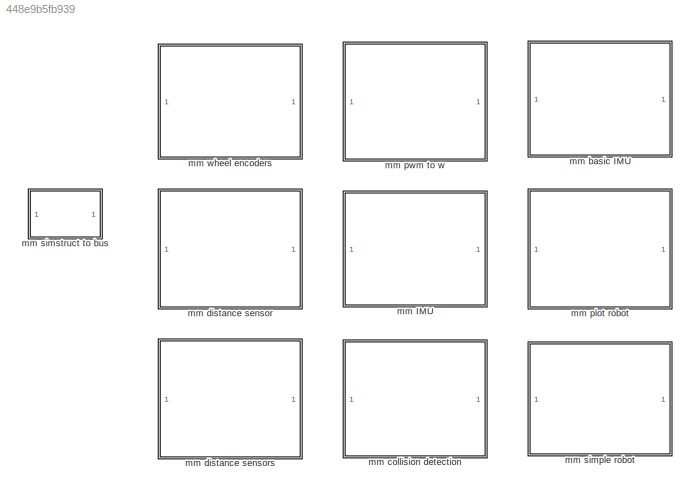
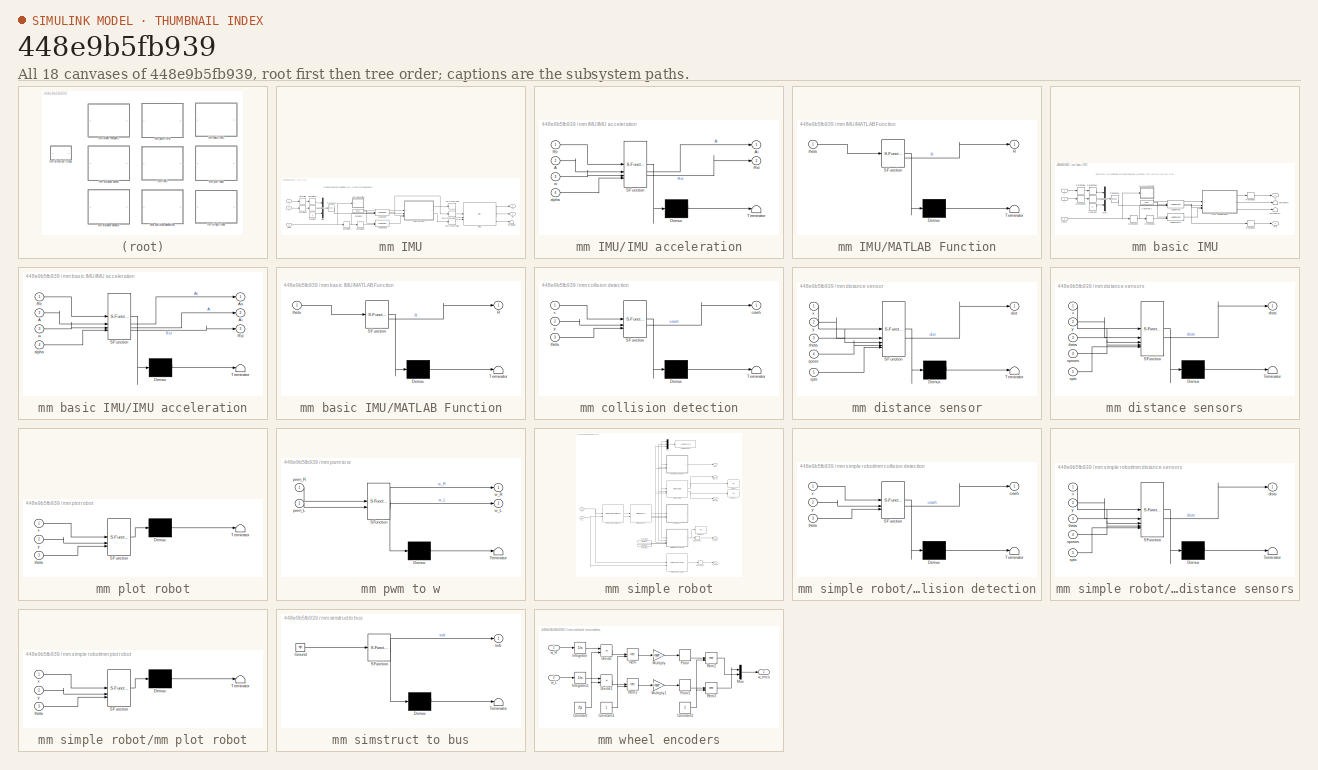
[diagram: thumbnail index - all 18 canvases of the model, root first then tree order]
MODEL slx_448e9b5fb939
KIND library
CONFIG AbsTol = auto
CONFIG EnableMultiTasking = off
CONFIG FixedStep = auto
CONFIG MaxStep = auto
CONFIG MinStep = auto
CONFIG RelTol = 1e-3
CONFIG SampleTimeConstraint = Unconstrained
CONFIG SolverName = VariableStepAuto
CONFIG StartTime = 0.0
CONFIG StopTime = 10.0
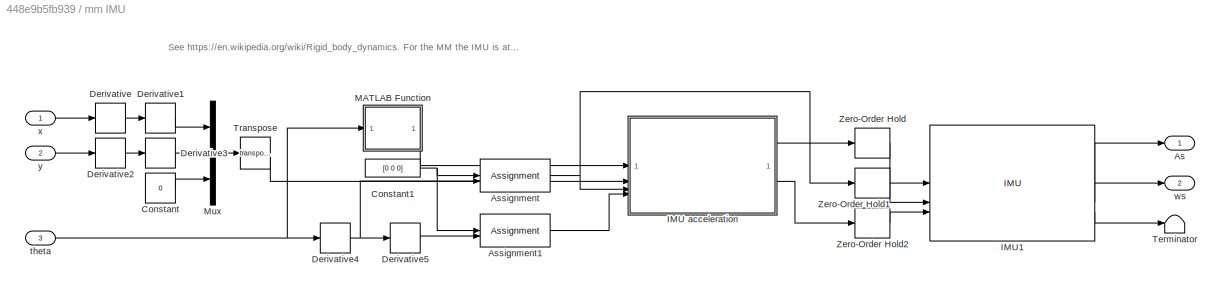
BLOCK [SubSystem] mm IMU
BLOCK [Outport] mm IMU/As
BLOCK [Assignment] mm IMU/Assignment
  DiagnosticForDimensions = Warning
  IndexOptions = Index vector (dialog)
  Indices = 3
  OutputSizes = 1
BLOCK [Assignment] mm IMU/Assignment1
  DiagnosticForDimensions = Warning
  IndexOptions = Index vector (dialog)
  Indices = 3
  OutputSizes = 1
BLOCK [Constant] mm IMU/Constant
  Value = 0
BLOCK [Constant] mm IMU/Constant1
  Value = [0 0 0]
  VectorParams1D = off
BLOCK [Derivative] mm IMU/Derivative
BLOCK [Derivative] mm IMU/Derivative1
BLOCK [Derivative] mm IMU/Derivative2
BLOCK [Derivative] mm IMU/Derivative3
BLOCK [Derivative] mm IMU/Derivative4
BLOCK [Derivative] mm IMU/Derivative5
BLOCK [SubSystem] mm IMU/IMU acceleration
  ErrorFcn = Stateflow.Translate.translate
  PermitHierarchicalResolution = ExplicitOnly
  SFBlockType = MATLAB Function
  TreatAsAtomicUnit = on
BLOCK [Demux] mm IMU/IMU acceleration/ Demux 
  Outputs = 1
BLOCK [S-Function] mm IMU/IMU acceleration/ SFunction 
  EnableBusSupport = off
  FunctionName = sf_sfun
  Parameters = simstruct
  PortCounts = [4 3]
  SFcnIsStateOwnerBlock = off
  SFunctionDeploymentMode = off
  Tag = Stateflow S-Function 4
BLOCK [Terminator] mm IMU/IMU acceleration/ Terminator 
BLOCK [Inport] mm IMU/IMU acceleration/A
  Port = 2
BLOCK [Outport] mm IMU/IMU acceleration/Ai
BLOCK [Inport] mm IMU/IMU acceleration/Rlr
BLOCK [Outport] mm IMU/IMU acceleration/Rsl
  Port = 2
BLOCK [Inport] mm IMU/IMU acceleration/alpha
  Port = 4
BLOCK [Inport] mm IMU/IMU acceleration/w
  Port = 3
BLOCK [Reference] mm IMU/IMU1  REF=mspsensorlib/IMU
  SourceBlock = mspsensorlib/IMU
  SourceType = fusion.simulink.imuSensor
BLOCK [SubSystem] mm IMU/MATLAB Function
  ErrorFcn = Stateflow.Translate.translate
  PermitHierarchicalResolution = ExplicitOnly
  SFBlockType = MATLAB Function
  TreatAsAtomicUnit = on
BLOCK [Demux] mm IMU/MATLAB Function/ Demux 
  Outputs = 1
BLOCK [S-Function] mm IMU/MATLAB Function/ SFunction 
  EnableBusSupport = off
  FunctionName = sf_sfun
  PortCounts = [1 2]
  SFcnIsStateOwnerBlock = off
  SFunctionDeploymentMode = off
  Tag = Stateflow S-Function 5
BLOCK [Terminator] mm IMU/MATLAB Function/ Terminator 
BLOCK [Outport] mm IMU/MATLAB Function/R
BLOCK [Inport] mm IMU/MATLAB Function/theta
BLOCK [Mux] mm IMU/Mux
  DisplayOption = bar
  Inputs = 3
BLOCK [Terminator] mm IMU/Terminator
BLOCK [Math] mm IMU/Transpose
  Operator = transpose
BLOCK [ZeroOrderHold] mm IMU/Zero-Order Hold
  SampleTime = 0.02
BLOCK [ZeroOrderHold] mm IMU/Zero-Order Hold1
  SampleTime = 0.02
BLOCK [ZeroOrderHold] mm IMU/Zero-Order Hold2
  SampleTime = 0.02
BLOCK [Inport] mm IMU/theta
  Port = 3
BLOCK [Outport] mm IMU/ws
  Port = 2
BLOCK [Inport] mm IMU/x
BLOCK [Inport] mm IMU/y
  Port = 2
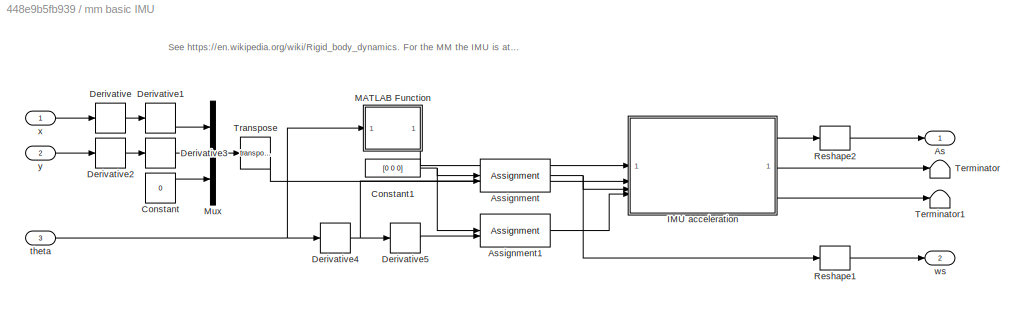
BLOCK [SubSystem] mm basic IMU
BLOCK [Outport] mm basic IMU/As
BLOCK [Assignment] mm basic IMU/Assignment
  DiagnosticForDimensions = Warning
  IndexOptions = Index vector (dialog)
  Indices = 3
  OutputSizes = 1
BLOCK [Assignment] mm basic IMU/Assignment1
  DiagnosticForDimensions = Warning
  IndexOptions = Index vector (dialog)
  Indices = 3
  OutputSizes = 1
BLOCK [Constant] mm basic IMU/Constant
  Value = 0
BLOCK [Constant] mm basic IMU/Constant1
  Value = [0 0 0]
  VectorParams1D = off
BLOCK [Derivative] mm basic IMU/Derivative
BLOCK [Derivative] mm basic IMU/Derivative1
BLOCK [Derivative] mm basic IMU/Derivative2
BLOCK [Derivative] mm basic IMU/Derivative3
BLOCK [Derivative] mm basic IMU/Derivative4
BLOCK [Derivative] mm basic IMU/Derivative5
BLOCK [SubSystem] mm basic IMU/IMU acceleration
  ErrorFcn = Stateflow.Translate.translate
  PermitHierarchicalResolution = ExplicitOnly
  SFBlockType = MATLAB Function
  TreatAsAtomicUnit = on
BLOCK [Demux] mm basic IMU/IMU acceleration/ Demux 
  Outputs = 1
BLOCK [S-Function] mm basic IMU/IMU acceleration/ SFunction 
  EnableBusSupport = off
  FunctionName = sf_sfun
  Parameters = simstruct
  PortCounts = [4 4]
  SFcnIsStateOwnerBlock = off
  SFunctionDeploymentMode = off
  Tag = Stateflow S-Function 9
BLOCK [Terminator] mm basic IMU/IMU acceleration/ Terminator 
BLOCK [Inport] mm basic IMU/IMU acceleration/A
  Port = 2
BLOCK [Outport] mm basic IMU/IMU acceleration/Ai
  Port = 2
BLOCK [Outport] mm basic IMU/IMU acceleration/As
BLOCK [Inport] mm basic IMU/IMU acceleration/Rlr
BLOCK [Outport] mm basic IMU/IMU acceleration/Rsl
  Port = 3
BLOCK [Inport] mm basic IMU/IMU acceleration/alpha
  Port = 4
BLOCK [Inport] mm basic IMU/IMU acceleration/w
  Port = 3
BLOCK [SubSystem] mm basic IMU/MATLAB Function
  ErrorFcn = Stateflow.Translate.translate
  PermitHierarchicalResolution = ExplicitOnly
  SFBlockType = MATLAB Function
  TreatAsAtomicUnit = on
BLOCK [Demux] mm basic IMU/MATLAB Function/ Demux 
  Outputs = 1
BLOCK [S-Function] mm basic IMU/MATLAB Function/ SFunction 
  EnableBusSupport = off
  FunctionName = sf_sfun
  PortCounts = [1 2]
  SFcnIsStateOwnerBlock = off
  SFunctionDeploymentMode = off
  Tag = Stateflow S-Function 13
BLOCK [Terminator] mm basic IMU/MATLAB Function/ Terminator 
BLOCK [Outport] mm basic IMU/MATLAB Function/R
BLOCK [Inport] mm basic IMU/MATLAB Function/theta
BLOCK [Mux] mm basic IMU/Mux
  DisplayOption = bar
  Inputs = 3
BLOCK [Reshape] mm basic IMU/Reshape1
BLOCK [Reshape] mm basic IMU/Reshape2
BLOCK [Terminator] mm basic IMU/Terminator
BLOCK [Terminator] mm basic IMU/Terminator1
BLOCK [Math] mm basic IMU/Transpose
  Operator = transpose
BLOCK [Inport] mm basic IMU/theta
  Port = 3
BLOCK [Outport] mm basic IMU/ws
  Port = 2
BLOCK [Inport] mm basic IMU/x
BLOCK [Inport] mm basic IMU/y
  Port = 2
BLOCK [SubSystem] mm collision detection
  ErrorFcn = Stateflow.Translate.translate
  InitFcn = struct2bus(simstruct,'ssbus');
  PermitHierarchicalResolution = ExplicitOnly
  SFBlockType = MATLAB Function
  TreatAsAtomicUnit = on
BLOCK [Demux] mm collision detection/ Demux 
  Outputs = 1
BLOCK [S-Function] mm collision detection/ SFunction 
  EnableBusSupport = off
  FunctionName = sf_sfun
  Parameters = simstruct
  PortCounts = [3 2]
  SFcnIsStateOwnerBlock = off
  SFunctionDeploymentMode = off
  Tag = Stateflow S-Function 3
BLOCK [Terminator] mm collision detection/ Terminator 
BLOCK [Outport] mm collision detection/crash
BLOCK [Inport] mm collision detection/theta
  Port = 3
BLOCK [Inport] mm collision detection/x
BLOCK [Inport] mm collision detection/y
  Port = 2
BLOCK [SubSystem] mm distance sensor
  ErrorFcn = Stateflow.Translate.translate
  InitFcn = struct2bus(simstruct,'ssbus');
  PermitHierarchicalResolution = ExplicitOnly
  SFBlockType = MATLAB Function
  TreatAsAtomicUnit = on
BLOCK [Demux] mm distance sensor/ Demux 
  Outputs = 1
BLOCK [S-Function] mm distance sensor/ SFunction 
  EnableBusSupport = off
  FunctionName = sf_sfun
  Parameters = debug,simstruct
  PortCounts = [5 2]
  SFcnIsStateOwnerBlock = off
  SFunctionDeploymentMode = off
  Tag = Stateflow S-Function 2
BLOCK [Terminator] mm distance sensor/ Terminator 
BLOCK [Outport] mm distance sensor/dist
BLOCK [Inport] mm distance sensor/spose
  Port = 4
BLOCK [Inport] mm distance sensor/spts
  Port = 5
BLOCK [Inport] mm distance sensor/theta
  Port = 3
BLOCK [Inport] mm distance sensor/x
BLOCK [Inport] mm distance sensor/y
  Port = 2
BLOCK [SubSystem] mm distance sensors
  ErrorFcn = Stateflow.Translate.translate
  InitFcn = struct2bus(simstruct,'ssbus');
  PermitHierarchicalResolution = ExplicitOnly
  SFBlockType = MATLAB Function
  TreatAsAtomicUnit = on
BLOCK [Demux] mm distance sensors/ Demux 
  Outputs = 1
BLOCK [S-Function] mm distance sensors/ SFunction 
  EnableBusSupport = off
  FunctionName = sf_sfun
  Parameters = debug,simstruct
  PortCounts = [5 2]
  SFcnIsStateOwnerBlock = off
  SFunctionDeploymentMode = off
  Tag = Stateflow S-Function 10
BLOCK [Terminator] mm distance sensors/ Terminator 
BLOCK [Outport] mm distance sensors/dists
BLOCK [Inport] mm distance sensors/sposes
  Port = 4
BLOCK [Inport] mm distance sensors/spts
  Port = 5
BLOCK [Inport] mm distance sensors/theta
  Port = 3
BLOCK [Inport] mm distance sensors/x
BLOCK [Inport] mm distance sensors/y
  Port = 2
BLOCK [SubSystem] mm plot robot
  ErrorFcn = Stateflow.Translate.translate
  InitFcn = simstruct_var = get_param(gcb,'simstruct'); \nexistsinbase = evalin('base', ['exist(''' simstruct_var ''',''var'')']); \n\nss = [];\nif existsinbase \n  %disp(['initFcn: loading simulation structure ' simstruct_var]); \n  ss = evalin('base',simstruct_var); \nend\nstruct2bus(ss,'ssbus');  % generate bus definition
  PermitHierarchicalResolution = ExplicitOnly
  SFBlockType = MATLAB Function
  TreatAsAtomicUnit = on
BLOCK [Demux] mm plot robot/ Demux 
  Outputs = 1
BLOCK [S-Function] mm plot robot/ SFunction 
  EnableBusSupport = off
  FunctionName = sf_sfun
  Parameters = simstruct
  PortCounts = [3 1]
  SFcnIsStateOwnerBlock = off
  SFunctionDeploymentMode = off
  Tag = Stateflow S-Function 1
BLOCK [Terminator] mm plot robot/ Terminator 
BLOCK [Inport] mm plot robot/theta
  Port = 3
BLOCK [Inport] mm plot robot/x
BLOCK [Inport] mm plot robot/y
  Port = 2
BLOCK [SubSystem] mm pwm to w
  ErrorFcn = Stateflow.Translate.translate
  PermitHierarchicalResolution = ExplicitOnly
  SFBlockType = MATLAB Function
  TreatAsAtomicUnit = on
BLOCK [Demux] mm pwm to w/ Demux 
  Outputs = 1
BLOCK [S-Function] mm pwm to w/ SFunction 
  EnableBusSupport = off
  FunctionName = sf_sfun
  Parameters = deadb,maxw,motd
  PortCounts = [2 3]
  SFcnIsStateOwnerBlock = off
  SFunctionDeploymentMode = off
  Tag = Stateflow S-Function 8
BLOCK [Terminator] mm pwm to w/ Terminator 
BLOCK [Inport] mm pwm to w/pwm_L
  Port = 2
BLOCK [Inport] mm pwm to w/pwm_R
BLOCK [Outport] mm pwm to w/w_L
  Port = 2
BLOCK [Outport] mm pwm to w/w_R
BLOCK [SubSystem] mm simple robot
BLOCK [Constant] mm simple robot/Constant
  Value = simstruct.tofspts
BLOCK [Constant] mm simple robot/Constant1
  Value = simstruct.tofposes
BLOCK [Display] mm simple robot/Display
  Decimation = 1
BLOCK [Display] mm simple robot/Display1
  Decimation = 1
BLOCK [Display] mm simple robot/Display2
  Decimation = 1
BLOCK [Mux] mm simple robot/Mux
  DisplayOption = bar
  Inputs = 3
BLOCK [Reshape] mm simple robot/Reshape2
BLOCK [Reshape] mm simple robot/Reshape3
BLOCK [ToWorkspace] mm simple robot/To Workspace
  FixptAsFi = on
  MaxDataPoints = inf
  SampleTime = -1
  SaveFormat = Timeseries
  VariableName = trajectory
BLOCK [Outport] mm simple robot/crash
BLOCK [Outport] mm simple robot/imu_As
  Port = 2
BLOCK [Outport] mm simple robot/imu_ws
  Port = 3
BLOCK [Reference] mm simple robot/mm basic IMU  REF=$bdroot/mm basic IMU
  SourceBlock = $bdroot/mm basic IMU
  SourceType = SubSystem
BLOCK [SubSystem] mm simple robot/mm collision detection
  ErrorFcn = Stateflow.Translate.translate
  InitFcn = struct2bus(simstruct,'ssbus');
  PermitHierarchicalResolution = ExplicitOnly
  SFBlockType = MATLAB Function
  TreatAsAtomicUnit = on
BLOCK [Demux] mm simple robot/mm collision detection/ Demux 
  Outputs = 1
BLOCK [S-Function] mm simple robot/mm collision detection/ SFunction 
  EnableBusSupport = off
  FunctionName = sf_sfun
  Parameters = simstruct
  PortCounts = [3 2]
  SFcnIsStateOwnerBlock = off
  SFunctionDeploymentMode = off
  Tag = Stateflow S-Function 7
BLOCK [Terminator] mm simple robot/mm collision detection/ Terminator 
BLOCK [Outport] mm simple robot/mm collision detection/crash
BLOCK [Inport] mm simple robot/mm collision detection/theta
  Port = 3
BLOCK [Inport] mm simple robot/mm collision detection/x
BLOCK [Inport] mm simple robot/mm collision detection/y
  Port = 2
BLOCK [SubSystem] mm simple robot/mm distance sensors
  ErrorFcn = Stateflow.Translate.translate
  InitFcn = struct2bus(simstruct,'ssbus');
  PermitHierarchicalResolution = ExplicitOnly
  SFBlockType = MATLAB Function
  TreatAsAtomicUnit = on
BLOCK [Demux] mm simple robot/mm distance sensors/ Demux 
  Outputs = 1
BLOCK [S-Function] mm simple robot/mm distance sensors/ SFunction 
  EnableBusSupport = off
  FunctionName = sf_sfun
  Parameters = debug,simstruct
  PortCounts = [5 2]
  SFcnIsStateOwnerBlock = off
  SFunctionDeploymentMode = off
  Tag = Stateflow S-Function 11
BLOCK [Terminator] mm simple robot/mm distance sensors/ Terminator 
BLOCK [Outport] mm simple robot/mm distance sensors/dists
BLOCK [Inport] mm simple robot/mm distance sensors/sposes
  Port = 4
BLOCK [Inport] mm simple robot/mm distance sensors/spts
  Port = 5
BLOCK [Inport] mm simple robot/mm distance sensors/theta
  Port = 3
BLOCK [Inport] mm simple robot/mm distance sensors/x
BLOCK [Inport] mm simple robot/mm distance sensors/y
  Port = 2
BLOCK [SubSystem] mm simple robot/mm plot robot
  ErrorFcn = Stateflow.Translate.translate
  InitFcn = simstruct_var = get_param(gcb,'simstruct'); \nexistsinbase = evalin('base', ['exist(''' simstruct_var ''',''var'')']); \n\nss = [];\nif existsinbase \n  %disp(['initFcn: loading simulation structure ' simstruct_var]); \n  ss = evalin('base',simstruct_var); \nend\nstruct2bus(ss,'ssbus');  % generate bus definition
  PermitHierarchicalResolution = ExplicitOnly
  SFBlockType = MATLAB Function
  TreatAsAtomicUnit = on
BLOCK [Demux] mm simple robot/mm plot robot/ Demux 
  Outputs = 1
BLOCK [S-Function] mm simple robot/mm plot robot/ SFunction 
  EnableBusSupport = off
  FunctionName = sf_sfun
  Parameters = simstruct
  PortCounts = [3 1]
  SFcnIsStateOwnerBlock = off
  SFunctionDeploymentMode = off
  Tag = Stateflow S-Function 12
BLOCK [Terminator] mm simple robot/mm plot robot/ Terminator 
BLOCK [Inport] mm simple robot/mm plot robot/theta
  Port = 3
BLOCK [Inport] mm simple robot/mm plot robot/x
BLOCK [Inport] mm simple robot/mm plot robot/y
  Port = 2
BLOCK [Reference] mm simple robot/mm robot pose  REF=dhaouadi2013_lib/mm robot pose  (lib defined in slx_0665a0507d13)
  SourceBlock = dhaouadi2013_lib/mm robot pose
BLOCK [Reference] mm simple robot/mm wheel encoders  REF=$bdroot/mm wheel encoders
  SourceBlock = $bdroot/mm wheel encoders
BLOCK [Reference] mm simple robot/mm wheel kinematics inv  REF=dhaouadi2013_lib/mm wheel kinematics inv  (lib defined in slx_0665a0507d13)
  SourceBlock = dhaouadi2013_lib/mm wheel kinematics inv
BLOCK [Outport] mm simple robot/tof_dists
  Port = 4
BLOCK [Inport] mm simple robot/w_L
  Port = 2
BLOCK [Inport] mm simple robot/w_R
BLOCK [Outport] mm simple robot/w_encs
  Port = 5
BLOCK [SubSystem] mm simstruct to bus
  ErrorFcn = Stateflow.Translate.translate
  InitFcn = struct2bus(simstruct,'ssbus')
  PermitHierarchicalResolution = ExplicitOnly
  SFBlockType = MATLAB Function
  TreatAsAtomicUnit = on
BLOCK [Demux] mm simstruct to bus/ Demux 
  Outputs = 1
BLOCK [Ground] mm simstruct to bus/ Ground 
BLOCK [S-Function] mm simstruct to bus/ SFunction 
  EnableBusSupport = off
  FunctionName = sf_sfun
  PortCounts = [1 2]
  SFcnIsStateOwnerBlock = off
  SFunctionDeploymentMode = off
  Tag = Stateflow S-Function 6
BLOCK [Terminator] mm simstruct to bus/ Terminator 
BLOCK [Outport] mm simstruct to bus/ssb
BLOCK [SubSystem] mm wheel encoders
BLOCK [Constant] mm wheel encoders/Constant
  Value = 2*pi
BLOCK [Constant] mm wheel encoders/Constant1
BLOCK [Constant] mm wheel encoders/Constant2
  Value = 2
BLOCK [Product] mm wheel encoders/Divide
  Inputs = */
BLOCK [Product] mm wheel encoders/Divide1
  Inputs = */
BLOCK [Rounding] mm wheel encoders/Floor
BLOCK [Rounding] mm wheel encoders/Floor1
BLOCK [Integrator] mm wheel encoders/Integrator
BLOCK [Integrator] mm wheel encoders/Integrator1
BLOCK [Gain] mm wheel encoders/Multiply
  Gain = ticsperrev*2
BLOCK [Gain] mm wheel encoders/Multiply1
  Gain = ticsperrev*2
BLOCK [Mux] mm wheel encoders/Mux
  DisplayOption = bar
  Inputs = 2
BLOCK [Math] mm wheel encoders/Rem
  Operator = rem
BLOCK [Math] mm wheel encoders/Rem1
  Operator = rem
BLOCK [Math] mm wheel encoders/Rem2
  Operator = rem
BLOCK [Math] mm wheel encoders/Rem3
  Operator = rem
BLOCK [Inport] mm wheel encoders/w_L
  Port = 2
BLOCK [Inport] mm wheel encoders/w_R
BLOCK [Outport] mm wheel encoders/w_encs
ANNOTATION mm IMU: See https://en.wikipedia.org/wiki/Rigid_body_dynamics. For the MM the IMU is at the center of rotation of the mouse, so all this correction for Coriolis etc. isn't really required.
ANNOTATION mm basic IMU: See https://en.wikipedia.org/wiki/Rigid_body_dynamics. For the MM the IMU is at the center of rotation of the mouse, so all this correction for Coriolis etc. isn't really required.
LINE mm IMU/Assignment1:1 -> mm IMU/IMU acceleration:4
NET mm IMU/Assignment:1 -> mm IMU/IMU acceleration:3, mm IMU/Zero-Order Hold1:1
NET mm IMU/Constant1:1 -> mm IMU/Assignment1:1, mm IMU/Assignment:1
LINE mm IMU/Constant:1 -> mm IMU/Mux:3
LINE mm IMU/Derivative1:1 -> mm IMU/Mux:1
LINE mm IMU/Derivative2:1 -> mm IMU/Derivative3:1
LINE mm IMU/Derivative3:1 -> mm IMU/Mux:2
NET mm IMU/Derivative4:1 -> mm IMU/Assignment:2, mm IMU/Derivative5:1
LINE mm IMU/Derivative5:1 -> mm IMU/Assignment1:2
LINE mm IMU/Derivative:1 -> mm IMU/Derivative1:1
LINE mm IMU/IMU acceleration:1 -> mm IMU/Zero-Order Hold:1
LINE mm IMU/IMU acceleration:2 -> mm IMU/Zero-Order Hold2:1
LINE mm IMU/IMU1:1 -> mm IMU/As:1
LINE mm IMU/IMU1:2 -> mm IMU/ws:1
LINE mm IMU/IMU1:3 -> mm IMU/Terminator:1
LINE mm IMU/MATLAB Function:1 -> mm IMU/IMU acceleration:1
LINE mm IMU/Mux:1 -> mm IMU/Transpose:1
LINE mm IMU/Transpose:1 -> mm IMU/IMU acceleration:2
LINE mm IMU/Zero-Order Hold1:1 -> mm IMU/IMU1:2
LINE mm IMU/Zero-Order Hold2:1 -> mm IMU/IMU1:3
LINE mm IMU/Zero-Order Hold:1 -> mm IMU/IMU1:1
NET mm IMU/theta:1 -> mm IMU/Derivative4:1, mm IMU/MATLAB Function:1
LINE mm IMU/x:1 -> mm IMU/Derivative:1
LINE mm IMU/y:1 -> mm IMU/Derivative2:1
LINE mm basic IMU/Assignment1:1 -> mm basic IMU/IMU acceleration:4
NET mm basic IMU/Assignment:1 -> mm basic IMU/IMU acceleration:3, mm basic IMU/Reshape1:1
NET mm basic IMU/Constant1:1 -> mm basic IMU/Assignment1:1, mm basic IMU/Assignment:1
LINE mm basic IMU/Constant:1 -> mm basic IMU/Mux:3
LINE mm basic IMU/Derivative1:1 -> mm basic IMU/Mux:1
LINE mm basic IMU/Derivative2:1 -> mm basic IMU/Derivative3:1
LINE mm basic IMU/Derivative3:1 -> mm basic IMU/Mux:2
NET mm basic IMU/Derivative4:1 -> mm basic IMU/Assignment:2, mm basic IMU/Derivative5:1
LINE mm basic IMU/Derivative5:1 -> mm basic IMU/Assignment1:2
LINE mm basic IMU/Derivative:1 -> mm basic IMU/Derivative1:1
LINE mm basic IMU/IMU acceleration:1 -> mm basic IMU/Reshape2:1
LINE mm basic IMU/IMU acceleration:2 -> mm basic IMU/Terminator:1
LINE mm basic IMU/IMU acceleration:3 -> mm basic IMU/Terminator1:1
LINE mm basic IMU/MATLAB Function:1 -> mm basic IMU/IMU acceleration:1
LINE mm basic IMU/Mux:1 -> mm basic IMU/Transpose:1
LINE mm basic IMU/Reshape1:1 -> mm basic IMU/ws:1
LINE mm basic IMU/Reshape2:1 -> mm basic IMU/As:1
LINE mm basic IMU/Transpose:1 -> mm basic IMU/IMU acceleration:2
NET mm basic IMU/theta:1 -> mm basic IMU/Derivative4:1, mm basic IMU/MATLAB Function:1
LINE mm basic IMU/x:1 -> mm basic IMU/Derivative:1
LINE mm basic IMU/y:1 -> mm basic IMU/Derivative2:1
LINE mm simple robot/Constant1:1 -> mm simple robot/mm distance sensors:4
LINE mm simple robot/Constant:1 -> mm simple robot/mm distance sensors:5
LINE mm simple robot/Mux:1 -> mm simple robot/To Workspace:1
LINE mm simple robot/Reshape2:1 -> mm simple robot/tof_dists:1
LINE mm simple robot/Reshape3:1 -> mm simple robot/w_encs:1
NET mm simple robot/mm basic IMU:1 -> mm simple robot/Display:1, mm simple robot/imu_As:1
NET mm simple robot/mm basic IMU:2 -> mm simple robot/Display1:1, mm simple robot/imu_ws:1
LINE mm simple robot/mm collision detection:1 -> mm simple robot/crash:1
NET mm simple robot/mm distance sensors:1 -> mm simple robot/Display2:1, mm simple robot/Reshape2:1
NET mm simple robot/mm robot pose:1 -> mm simple robot/Mux:1, mm simple robot/mm basic IMU:1, mm simple robot/mm collision detection:1, mm simple robot/mm distance sensors:1, mm simple robot/mm plot robot:1
NET mm simple robot/mm robot pose:2 -> mm simple robot/Mux:2, mm simple robot/mm basic IMU:2, mm simple robot/mm collision detection:2, mm simple robot/mm distance sensors:2, mm simple robot/mm plot robot:2
NET mm simple robot/mm robot pose:3 -> mm simple robot/Mux:3, mm simple robot/mm basic IMU:3, mm simple robot/mm collision detection:3, mm simple robot/mm distance sensors:3, mm simple robot/mm plot robot:3
LINE mm simple robot/mm wheel encoders:1 -> mm simple robot/Reshape3:1
LINE mm simple robot/mm wheel kinematics inv:1 -> mm simple robot/mm robot pose:1
LINE mm simple robot/mm wheel kinematics inv:2 -> mm simple robot/mm robot pose:2
NET mm simple robot/w_L:1 -> mm simple robot/mm wheel encoders:2, mm simple robot/mm wheel kinematics inv:2
NET mm simple robot/w_R:1 -> mm simple robot/mm wheel encoders:1, mm simple robot/mm wheel kinematics inv:1
NET mm wheel encoders/Constant1:1 -> mm wheel encoders/Rem1:2, mm wheel encoders/Rem:2
NET mm wheel encoders/Constant2:1 -> mm wheel encoders/Rem2:2, mm wheel encoders/Rem3:2
NET mm wheel encoders/Constant:1 -> mm wheel encoders/Divide1:2, mm wheel encoders/Divide:2
LINE mm wheel encoders/Divide1:1 -> mm wheel encoders/Rem1:1
LINE mm wheel encoders/Divide:1 -> mm wheel encoders/Rem:1
LINE mm wheel encoders/Floor1:1 -> mm wheel encoders/Rem3:1
LINE mm wheel encoders/Floor:1 -> mm wheel encoders/Rem2:1
LINE mm wheel encoders/Integrator1:1 -> mm wheel encoders/Divide1:1
LINE mm wheel encoders/Integrator:1 -> mm wheel encoders/Divide:1
LINE mm wheel encoders/Multiply1:1 -> mm wheel encoders/Floor1:1
LINE mm wheel encoders/Multiply:1 -> mm wheel encoders/Floor:1
LINE mm wheel encoders/Mux:1 -> mm wheel encoders/w_encs:1
LINE mm wheel encoders/Rem1:1 -> mm wheel encoders/Multiply1:1
LINE mm wheel encoders/Rem2:1 -> mm wheel encoders/Mux:2
LINE mm wheel encoders/Rem3:1 -> mm wheel encoders/Mux:1
LINE mm wheel encoders/Rem:1 -> mm wheel encoders/Multiply:1
LINE mm wheel encoders/w_L:1 -> mm wheel encoders/Integrator1:1
LINE mm wheel encoders/w_R:1 -> mm wheel encoders/Integrator:1
note: NET lines group one-source signal fan-out (src -> all destinations, sorted); 1:1 wires keep LINE
CHART mm distance sensors states=1 transitions=1
  STATE_LABEL 'eML_blk_kernel()'
  STATE_LABEL 'SCRIPT:\nfunction dists = distsensors(x,y,theta,sposes,spts,simstruct,debug)\n%DISTSENS  Simulate output of time-of-flight distance sensor\n%   dists = distsens(x,y,theta,sposes,spts,simstruct,debug) takes a\n%   robot pose in the world (x, y, theta), a sensor pose in the robot frame\n%   (spos), and a set of sensor points to be checked in the sensor frame,\n%   and finds the distance from the sensor to...<+3608ch>'
CHART mm simple robot/mm distance sensors states=1 transitions=1
  STATE_LABEL 'eML_blk_kernel()'
  STATE_LABEL 'SCRIPT:\nfunction dists = distsensors(x,y,theta,sposes,spts,simstruct,debug)\n%DISTSENS  Simulate output of time-of-flight distance sensor\n%   dists = distsens(x,y,theta,sposes,spts,simstruct,debug) takes a\n%   robot pose in the world (x, y, theta), a sensor pose in the robot frame\n%   (spos), and a set of sensor points to be checked in the sensor frame,\n%   and finds the distance from the sensor to...<+3608ch>'
CHART mm simple robot/mm plot robot states=1 transitions=1
  STATE_LABEL 'eML_blk_kernel()'
  STATE_LABEL "SCRIPT:\nfunction plotrobot(x,y,theta,simstruct)\ncoder.extrinsic('imread', 'image', 'set', 'drawnow', 'evalin', 'plot', 'keyboard');\n%persistent plotHandle robot_img robot_imgalpha robot_imgres robot_imgxyd;\n\nfh = evalin('base','UCTMMRobotSimulatorHandle');\nih = get(fh,'UserData');\n\nif isfield(simstruct,'robot_img') && isfield(simstruct,'robot_imgalpha') && isfield(simstruct,'robot_imgxyd')\n  robot...<+967ch>"
CHART mm basic IMU/MATLAB Function states=1 transitions=1
  STATE_LABEL 'eML_blk_kernel()'
  STATE_LABEL 'SCRIPT:\nfunction R = theta2R(theta)\n\nR = axang2rotm([0 0 1 theta]);\n'
CHART mm plot robot states=1 transitions=1
  STATE_LABEL 'eML_blk_kernel()'
  STATE_LABEL "SCRIPT:\nfunction plotrobot(x,y,theta,simstruct)\ncoder.extrinsic('imread', 'image', 'set', 'drawnow', 'evalin', 'plot', 'keyboard');\n%persistent plotHandle robot_img robot_imgalpha robot_imgres robot_imgxyd;\n\nfh = evalin('base','UCTMMRobotSimulatorHandle');\nih = get(fh,'UserData');\n\nif isfield(simstruct,'robot_img') && isfield(simstruct,'robot_imgalpha') && isfield(simstruct,'robot_imgxyd')\n  robot...<+967ch>"
CHART mm distance sensor states=1 transitions=1
  STATE_LABEL 'eML_blk_kernel()'
  STATE_LABEL 'SCRIPT:\nfunction dist = distsens(x,y,theta,spose,spts,simstruct,debug)\n%DISTSENS  Simulate output of time-of-flight distance sensor\n%   dist = distsens(x,y,theta,spose,spts,simstruct,debug) takes a\n%   robot pose in the world (x, y, theta), a sensor pose in the robot frame\n%   (spos), and a set of sensor points to be checked in the sensor frame,\n%   and finds the distance from the sensor to the ne...<+3340ch>'
CHART mm collision detection states=1 transitions=1
  STATE_LABEL 'eML_blk_kernel()'
  STATE_LABEL "SCRIPT:\nfunction crash = collisiondetect(x,y,theta,simstruct)\ncoder.extrinsic('imread', 'image', 'set', 'drawnow', 'evalin', 'plot');\n\nmapdt = simstruct.mapdt;\nmapres = simstruct.mapres;\nrobot_rad = simstruct.robot_rad;\n\ncrash = 0;\n\n% Always crashed if out of map\nxi = x*mapres + 1;  yi = round(y*mapres) + 1;  % world to image\nif yi<1 || yi>size(mapdt,1) || xi<1 || xi>size(mapdt,2)\n  crash = 1;\n  r...<+117ch>"
CHART mm IMU/IMU acceleration states=1 transitions=1
  STATE_LABEL 'eML_blk_kernel()'
  STATE_LABEL 'SCRIPT:\nfunction [Ai,Rsl]  = getimuaccel(Rlr,A,w,alpha,simstruct)\n%GETIMUACCEL  Get linear acceleration of IMU in local frame\n%  [Ai,Rls]  = getimuaccel(Rlr,A,w,alpha,simstruct) calculates the linear\n%  acceleration at the origin of an IMU sensor frame fixed to a robot.  The\n%  robot frame is oriented by Rlr with respect to the local frane and is\n%  moving according to (A,w,alpha) = (linear accele...<+1036ch>'
CHART mm IMU/MATLAB Function states=1 transitions=1
  STATE_LABEL 'eML_blk_kernel()'
  STATE_LABEL 'SCRIPT:\nfunction R = theta2R(theta)\n\nR = axang2rotm([0 0 1 theta]);\n'
CHART mm simstruct to bus states=1 transitions=1
  STATE_LABEL 'eML_blk_kernel()'
  STATE_LABEL "SCRIPT:\nfunction ssb = ss2b()\ncoder.extrinsic('evalin');\n\nssb = evalin('base','simstruct');\n"
CHART mm simple robot/mm collision detection states=1 transitions=1
  STATE_LABEL 'eML_blk_kernel()'
  STATE_LABEL "SCRIPT:\nfunction crash = collisiondetect(x,y,theta,simstruct)\ncoder.extrinsic('imread', 'image', 'set', 'drawnow', 'evalin', 'plot');\n\nmapdt = simstruct.mapdt;\nmapres = simstruct.mapres;\nrobot_rad = simstruct.robot_rad;\n\ncrash = 0;\n\n% Always crashed if out of map\nxi = x*mapres + 1;  yi = round(y*mapres) + 1;  % world to image\nif yi<1 || yi>size(mapdt,1) || xi<1 || xi>size(mapdt,2)\n  crash = 1;\n  r...<+117ch>"
CHART mm pwm to w states=1 transitions=1
  STATE_LABEL 'eML_blk_kernel()'
  STATE_LABEL 'SCRIPT:\nfunction [w_R,w_L] = pwm2angfreq(pwm_R,pwm_L,deadb,maxw,motd)\n% motd:  0 (lf,rf), 1 (lb,rf), 2 (lf,rb), 3 (lb,rb)\n\nif nargin<5\n  motd = 0;\nend\n\na = maxw/(100-deadb);\nc = -deadb*maxw/(100-deadb);\n\n% Piecewise (approximate)\nif pwm_R<-deadb\n  w_R = a*pwm_R - c;\nelseif pwm_R<deadb\n  w_R = 0;\nelse\n  w_R = a*pwm_R + c;\nend\n\n% Piecewise (approximate)\nif pwm_L<-deadb\n  w_L = a*pwm_L - c;\nelseif pw...<+187ch>'
CHART mm basic IMU/IMU acceleration states=1 transitions=1
  STATE_LABEL 'eML_blk_kernel()'
  STATE_LABEL 'SCRIPT:\nfunction [As,Ai,Rsl]  = getimuaccel(Rlr,A,w,alpha,simstruct)\n%GETIMUACCEL  Get linear acceleration of IMU in local frame\n%  [As,Ai,Rls]  = getimuaccel(Rlr,A,w,alpha,simstruct) calculates the linear\n%  acceleration at the origin of an IMU sensor frame fixed to a robot.  The\n%  robot frame is oriented by Rlr with respect to the local frame and is\n%  moving according to (A,w,alpha) = (linear ...<+1039ch>'
CHART  states=0 transitions=0
CHART  states=0 transitions=0
CHART  states=0 transitions=0
CHART  states=0 transitions=0
CHART  states=0 transitions=0
CHART  states=0 transitions=0
CHART  states=0 transitions=0
CHART  states=0 transitions=0
CHART  states=0 transitions=0
CHART  states=0 transitions=0
CHART  states=0 transitions=0
CHART  states=0 transitions=0
CHART  states=0 transitions=0
